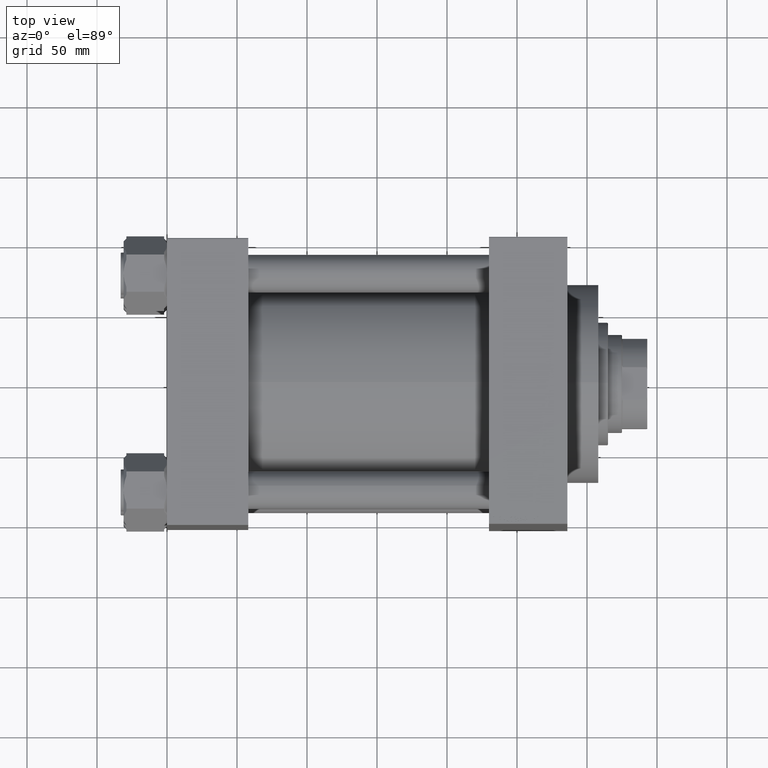
[diagram: clean part render]
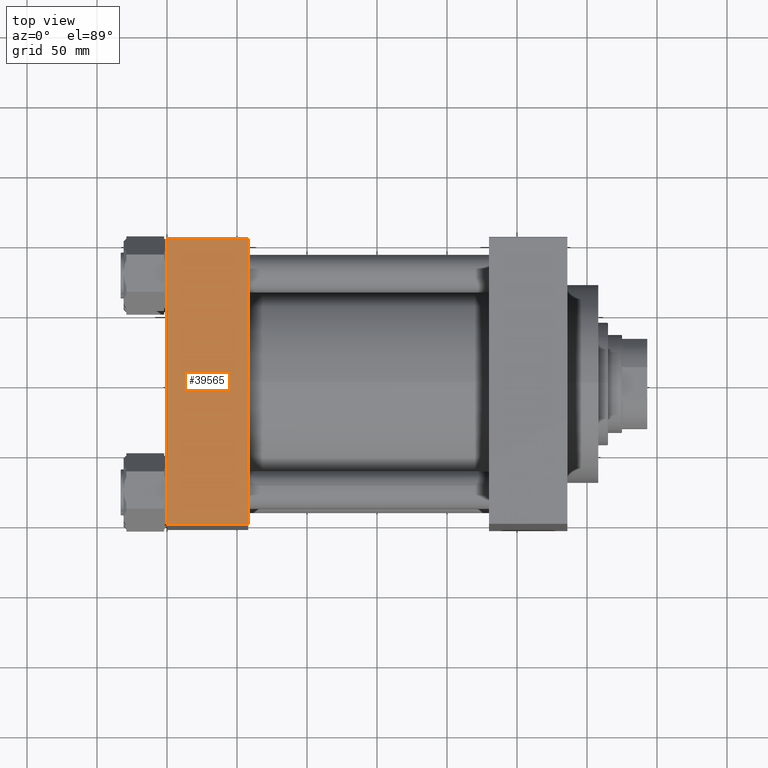
[diagram: same view with one face highlighted and labeled with its STEP entity id]
A machine part, top view. The second image highlights one B-rep face of the part: STEP entity #39565.
In plain terms, the highlighted planar face has unit normal (0, 0, -1).
Its self-contained STEP definition (entity closure, byte-faithful):
#1327 = VERTEX_POINT ( 'NONE', #18172 ) ;
#1515 = PLANE ( 'NONE',  #46317 ) ;
#2738 = CARTESIAN_POINT ( 'NONE',  ( 0.000000000000000000, 102.0000000000000142, 102.5000000000000284 ) ) ;
#3085 = CARTESIAN_POINT ( 'NONE',  ( 0.000000000000000000, -101.9999999999999147, 102.5000000000000000 ) ) ;
#7880 = VERTEX_POINT ( 'NONE', #28952 ) ;
#8131 = VECTOR ( 'NONE', #17465, 1000.000000000000000 ) ;
#10388 = LINE ( 'NONE', #25120, #40433 ) ;
#11107 = VERTEX_POINT ( 'NONE', #3085 ) ;
#11995 = EDGE_CURVE ( 'NONE', #7880, #1327, #19227, .T. ) ;
#15505 = FACE_OUTER_BOUND ( 'NONE', #16079, .T. ) ;
#15984 = DIRECTION ( 'NONE',  ( 0.000000000000000000, -1.000000000000000000, -1.353930517835556973E-16 ) ) ;
#16079 = EDGE_LOOP ( 'NONE', ( #21970, #32953, #40767, #19705 ) ) ;
#17465 = DIRECTION ( 'NONE',  ( -1.000000000000000000, 0.000000000000000000, 0.000000000000000000 ) ) ;
#18172 = CARTESIAN_POINT ( 'NONE',  ( 58.00000000000000000, -101.9999999999999147, 102.5000000000000000 ) ) ;
#19024 = EDGE_CURVE ( 'NONE', #11107, #1327, #10388, .T. ) ;
#19227 = LINE ( 'NONE', #45738, #32345 ) ;
#19614 = LINE ( 'NONE', #20095, #45590 ) ;
#19705 = ORIENTED_EDGE ( 'NONE', *, *, #20033, .T. ) ;
#20033 = EDGE_CURVE ( 'NONE', #7880, #33874, #42544, .T. ) ;
#20095 = CARTESIAN_POINT ( 'NONE',  ( 0.000000000000000000, 102.5000000000000284, 102.5000000000000284 ) ) ;
#21970 = ORIENTED_EDGE ( 'NONE', *, *, #42007, .T. ) ;
#23229 = CARTESIAN_POINT ( 'NONE',  ( 58.00000000000000000, 102.5000000000000284, 102.5000000000000284 ) ) ;
#24640 = DIRECTION ( 'NONE',  ( 1.000000000000000000, 0.000000000000000000, 0.000000000000000000 ) ) ;
#25120 = CARTESIAN_POINT ( 'NONE',  ( 58.00000000000000000, -101.9999999999999716, 102.5000000000000000 ) ) ;
#26852 = DIRECTION ( 'NONE',  ( 0.000000000000000000, 1.353930517835556973E-16, -1.000000000000000000 ) ) ;
#28952 = CARTESIAN_POINT ( 'NONE',  ( 58.00000000000000000, 102.0000000000000142, 102.5000000000000284 ) ) ;
#30473 = CARTESIAN_POINT ( 'NONE',  ( 0.000000000000000000, 102.0000000000000142, 102.5000000000000284 ) ) ;
#32345 = VECTOR ( 'NONE', #34894, 1000.000000000000000 ) ;
#32953 = ORIENTED_EDGE ( 'NONE', *, *, #19024, .T. ) ;
#33874 = VERTEX_POINT ( 'NONE', #30473 ) ;
#34894 = DIRECTION ( 'NONE',  ( 0.000000000000000000, -1.000000000000000000, -1.353930517835556973E-16 ) ) ;
#37936 = DIRECTION ( 'NONE',  ( 0.000000000000000000, 1.000000000000000000, 1.353930517835556973E-16 ) ) ;
#39565 = ADVANCED_FACE ( 'NONE', ( #15505 ), #1515, .F. ) ;
#40433 = VECTOR ( 'NONE', #24640, 1000.000000000000000 ) ;
#40767 = ORIENTED_EDGE ( 'NONE', *, *, #11995, .F. ) ;
#42007 = EDGE_CURVE ( 'NONE', #33874, #11107, #19614, .T. ) ;
#42544 = LINE ( 'NONE', #2738, #8131 ) ;
#45590 = VECTOR ( 'NONE', #15984, 1000.000000000000000 ) ;
#45738 = CARTESIAN_POINT ( 'NONE',  ( 58.00000000000000000, 102.5000000000000284, 102.5000000000000284 ) ) ;
#46317 = AXIS2_PLACEMENT_3D ( 'NONE', #23229, #26852, #37936 ) ;